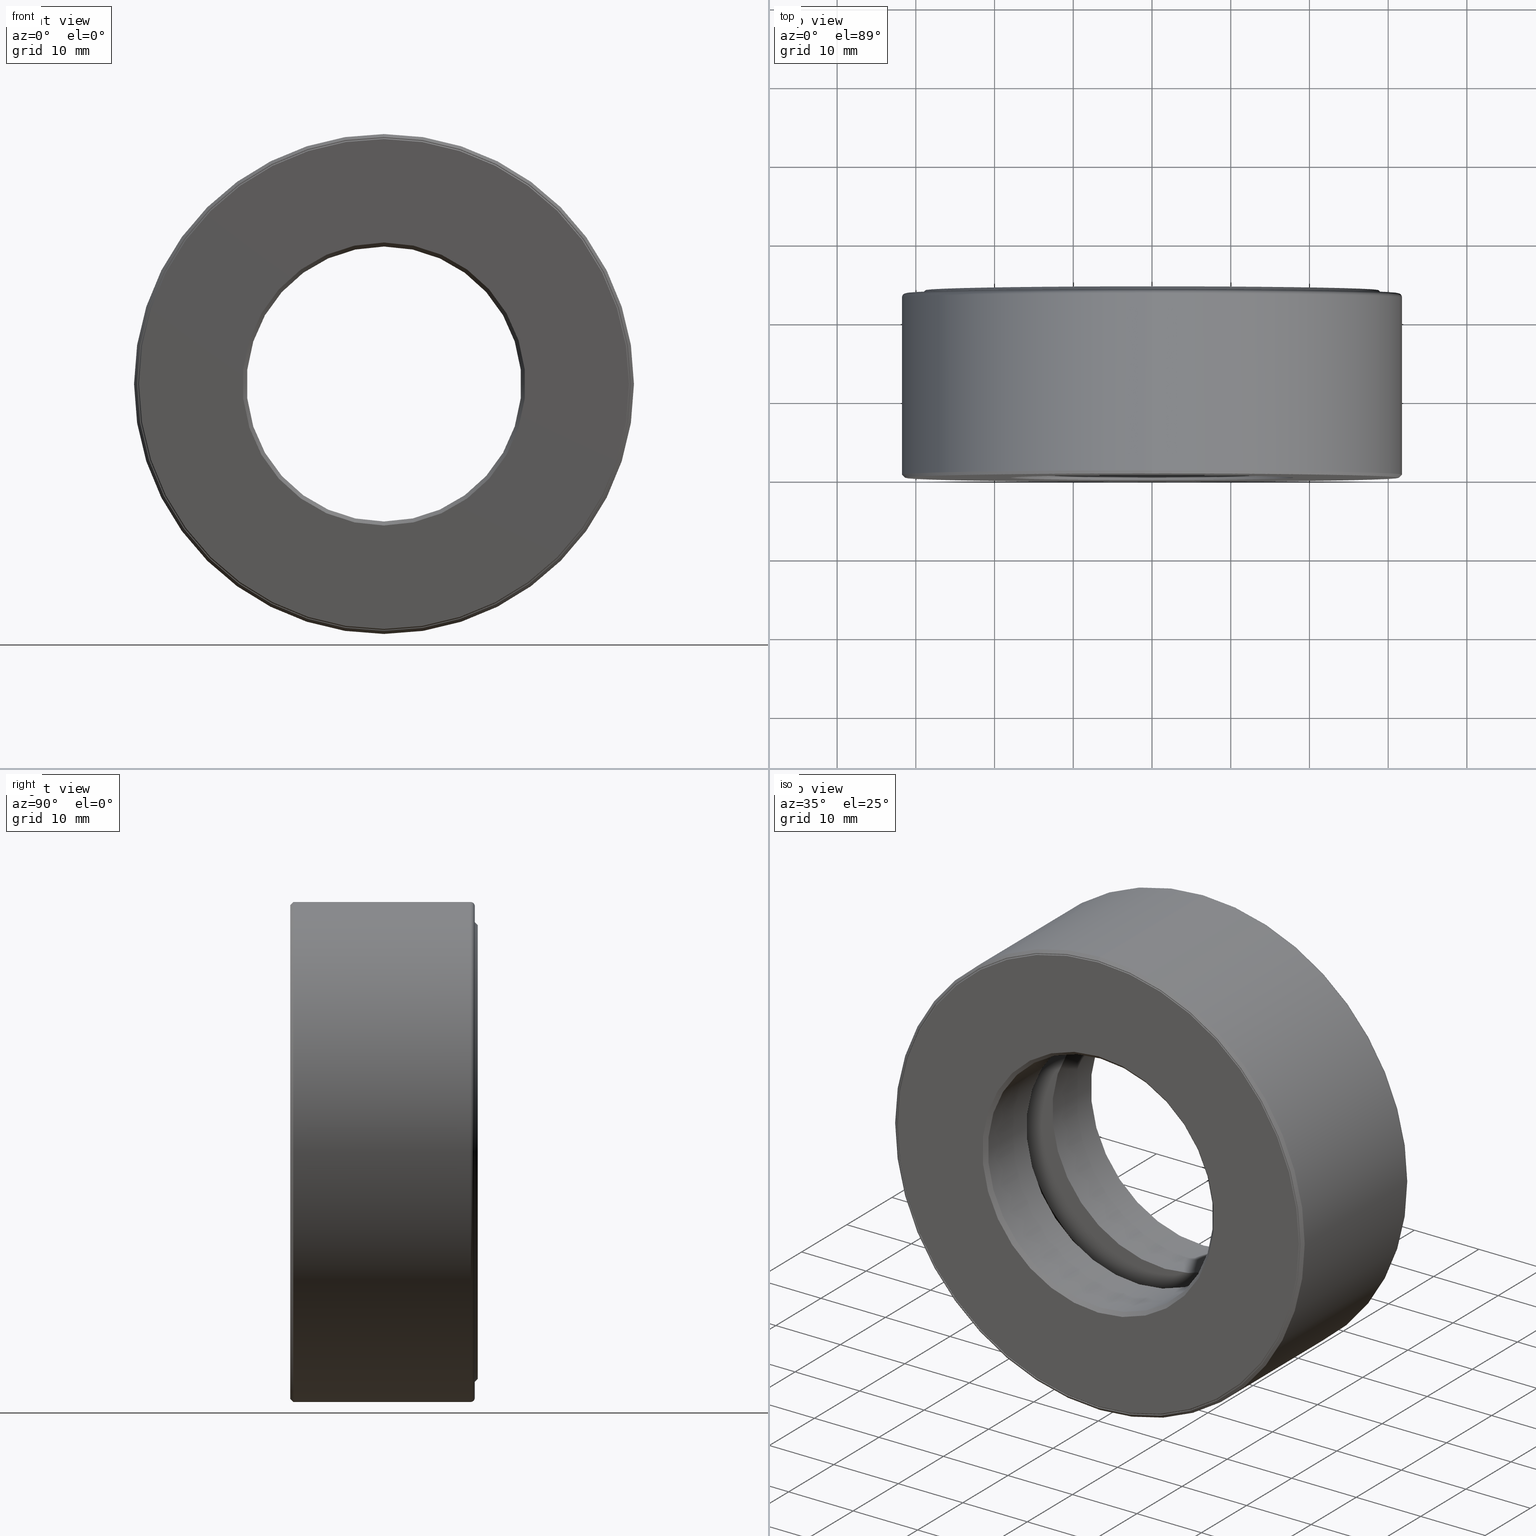
[diagram: canonical four-view strip — front | top / right | iso, engineering-drawing reading convention]
A machine part, canonical four-view strip (front | top / right | iso — engineering-drawing reading convention). The complete STEP part file that produces these views, byte-faithful:
ISO-10303-21;
HEADER;
FILE_DESCRIPTION (( 'STEP AP203' ),
    '1' );
FILE_NAME ('T-100-19A.step',
    '2016-06-29T18:27:23',
    ( '' ),
    ( '' ),
    'SwSTEP 2.0',
    'SolidWorks 2016',
    '' );
FILE_SCHEMA (( 'CONFIG_CONTROL_DESIGN' ));
ENDSEC;

DATA;
#1 = ORIENTED_EDGE ( 'NONE', *, *, #369, .T. ) ;
#2 = DIRECTION ( 'NONE',  ( 0.0000000000000000000, 0.0000000000000000000, 1.000000000000000000 ) ) ;
#3 = CARTESIAN_POINT ( 'NONE',  ( 0.0000000000000000000, 0.9375000000000000000, 0.0000000000000000000 ) ) ;
#4 = DIRECTION ( 'NONE',  ( -0.0000000000000000000, 1.000000000000000000, -0.0000000000000000000 ) ) ;
#5 = VERTEX_POINT ( 'NONE', #175 ) ;
#6 = FACE_OUTER_BOUND ( 'NONE', #220, .T. ) ;
#7 = SPHERICAL_SURFACE ( 'NONE', #243, 0.1874999999999999400 ) ;
#8 = PLANE ( 'NONE',  #431 ) ;
#9 = AXIS2_PLACEMENT_3D ( 'NONE', #467, #472, #430 ) ;
#10 = EDGE_LOOP ( 'NONE', ( #556 ) ) ;
#11 = DIRECTION ( 'NONE',  ( -0.0000000000000000000, 1.000000000000000000, 0.0000000000000000000 ) ) ;
#12 = DIRECTION ( 'NONE',  ( -0.0000000000000000000, 1.000000000000000000, -0.0000000000000000000 ) ) ;
#13 = APPROVAL_DATE_TIME ( #580, #198 ) ;
#14 = CIRCLE ( 'NONE', #468, 0.6875000000000001100 ) ;
#15 = ORIENTED_EDGE ( 'NONE', *, *, #307, .F. ) ;
#16 = ORIENTED_EDGE ( 'NONE', *, *, #245, .T. ) ;
#17 = CARTESIAN_POINT ( 'NONE',  ( -1.033500000000000100, 0.4687499999999998900, 0.0000000000000000000 ) ) ;
#18 = AXIS2_PLACEMENT_3D ( 'NONE', #551, #275, #124 ) ;
#19 = DIRECTION ( 'NONE',  ( 0.0000000000000000000, 0.0000000000000000000, 1.000000000000000000 ) ) ;
#20 = CC_DESIGN_APPROVAL ( #335, ( #64 ) ) ;
#21 = CONICAL_SURFACE ( 'NONE', #366, 0.6875000000000001100, 0.7853981633974380600 ) ;
#22 = CIRCLE ( 'NONE', #460, 1.250000000000000000 ) ;
#23 = EDGE_LOOP ( 'NONE', ( #16 ) ) ;
#24 = CARTESIAN_POINT ( 'NONE',  ( 0.0000000000000000000, 0.01499999999999997700, 1.250000000000000000 ) ) ;
#25 = DIRECTION ( 'NONE',  ( 0.0000000000000000000, -1.000000000000000000, 0.0000000000000000000 ) ) ;
#26 = AXIS2_PLACEMENT_3D ( 'NONE', #239, #520, #293 ) ;
#27 = DIRECTION ( 'NONE',  ( 0.0000000000000000000, -0.0000000000000000000, -1.000000000000000000 ) ) ;
#28 = LOCAL_TIME ( 14, 27, 23.00000000000000000, #510 ) ;
#29 = CIRCLE ( 'NONE', #269, 1.222999999999999900 ) ;
#30 = EDGE_LOOP ( 'NONE', ( #15 ) ) ;
#31 = DIRECTION ( 'NONE',  ( 0.0000000000000000000, 0.0000000000000000000, 1.000000000000000000 ) ) ;
#32 = DIRECTION ( 'NONE',  ( 0.0000000000000000000, -1.000000000000000000, 0.0000000000000000000 ) ) ;
#33 = AXIS2_PLACEMENT_3D ( 'NONE', #167, #272, #590 ) ;
#34 = ADVANCED_FACE ( 'NONE', ( #311, #372 ), #181, .F. ) ;
#35 = AXIS2_PLACEMENT_3D ( 'NONE', #267, #25, #27 ) ;
#36 = CARTESIAN_POINT ( 'NONE',  ( 0.0000000000000000000, 0.5812499999999999300, 0.8835000000000000600 ) ) ;
#37 = FACE_BOUND ( 'NONE', #379, .T. ) ;
#38 = FACE_BOUND ( 'NONE', #533, .T. ) ;
#39 = CARTESIAN_POINT ( 'NONE',  ( 0.0000000000000000000, 0.005000000000000045200, 1.230000000000000000 ) ) ;
#40 = AXIS2_PLACEMENT_3D ( 'NONE', #251, #11, #59 ) ;
#41 =( NAMED_UNIT ( * ) PLANE_ANGLE_UNIT ( ) SI_UNIT ( $, .RADIAN. ) );
#42 = DIRECTION ( 'NONE',  ( 0.0000000000000000000, 0.0000000000000000000, 1.000000000000000000 ) ) ;
#43 = MANIFOLD_SOLID_BREP ( 'BALLS[3]', #258 ) ;
#44 = MANIFOLD_SOLID_BREP ( 'BALLS[1]', #257 ) ;
#45 = DIRECTION ( 'NONE',  ( 0.0000000000000000000, 0.0000000000000000000, 1.000000000000000000 ) ) ;
#46 = VERTEX_POINT ( 'NONE', #405 ) ;
#47 = CIRCLE ( 'NONE', #221, 0.6875000000000001100 ) ;
#48 = EDGE_LOOP ( 'NONE', ( #331 ) ) ;
#49 = AXIS2_PLACEMENT_3D ( 'NONE', #89, #193, #566 ) ;
#50 = DIRECTION ( 'NONE',  ( -0.0000000000000000000, 1.000000000000000000, -0.0000000000000000000 ) ) ;
#51 = LOCAL_TIME ( 14, 27, 23.00000000000000000, #254 ) ;
#52 = DIRECTION ( 'NONE',  ( -0.0000000000000000000, 1.000000000000000000, -0.0000000000000000000 ) ) ;
#53 = FACE_OUTER_BOUND ( 'NONE', #600, .T. ) ;
#54 = ORIENTED_EDGE ( 'NONE', *, *, #160, .T. ) ;
#55 = CARTESIAN_POINT ( 'NONE',  ( 0.0000000000000000000, -5.975917486140577600E-017, 0.0000000000000000000 ) ) ;
#56 = DIRECTION ( 'NONE',  ( 0.0000000000000000000, 0.0000000000000000000, 1.000000000000000000 ) ) ;
#57 = FACE_OUTER_BOUND ( 'NONE', #380, .T. ) ;
#58 = FACE_OUTER_BOUND ( 'NONE', #403, .T. ) ;
#59 = DIRECTION ( 'NONE',  ( 0.0000000000000000000, 0.0000000000000000000, 1.000000000000000000 ) ) ;
#60 = AXIS2_PLACEMENT_3D ( 'NONE', #55, #151, #56 ) ;
#61 = ORIENTED_EDGE ( 'NONE', *, *, #404, .T. ) ;
#62 = CARTESIAN_POINT ( 'NONE',  ( 0.0000000000000000000, 0.0000000000000000000, 0.0000000000000000000 ) ) ;
#63 = DIRECTION ( 'NONE',  ( 1.000000000000000000, 0.0000000000000000000, -1.047444401652939500E-014 ) ) ;
#64 = SECURITY_CLASSIFICATION ( '', '', #129 ) ;
#65 = CARTESIAN_POINT ( 'NONE',  ( 0.0000000000000000000, 0.9024999999999998600, 0.0000000000000000000 ) ) ;
#66 = ORIENTED_EDGE ( 'NONE', *, *, #80, .F. ) ;
#67 = CARTESIAN_POINT ( 'NONE',  ( 0.0000000000000000000, 0.9375000000000000000, 0.0000000000000000000 ) ) ;
#68 = AXIS2_PLACEMENT_3D ( 'NONE', #400, #498, #222 ) ;
#69 = ADVANCED_FACE ( 'NONE', ( #531, #265 ), #390, .F. ) ;
#70 = CARTESIAN_POINT ( 'NONE',  ( 0.0000000000000000000, -5.975917486140577600E-017, 0.0000000000000000000 ) ) ;
#71 = AXIS2_PLACEMENT_3D ( 'NONE', #67, #121, #31 ) ;
#72 = ADVANCED_FACE ( 'NONE', ( #587, #150 ), #190, .F. ) ;
#73 = CARTESIAN_POINT ( 'NONE',  ( 0.0000000000000000000, 0.0000000000000000000, 0.0000000000000000000 ) ) ;
#74 = PERSON_AND_ORGANIZATION ( #457, #156 ) ;
#75 = DIRECTION ( 'NONE',  ( -0.0000000000000000000, 1.000000000000000000, -0.0000000000000000000 ) ) ;
#76 = FACE_OUTER_BOUND ( 'NONE', #448, .T. ) ;
#77 = ORIENTED_EDGE ( 'NONE', *, *, #603, .F. ) ;
#78 = ADVANCED_FACE ( 'NONE', ( #540, #134 ), #422, .T. ) ;
#79 = CARTESIAN_POINT ( 'NONE',  ( 0.0000000000000000000, 0.3562500000000000100, 1.183500000000000000 ) ) ;
#80 = EDGE_CURVE ( 'NONE', #481, #481, #22, .T. ) ;
#81 = DIRECTION ( 'NONE',  ( 0.0000000000000000000, 0.0000000000000000000, 1.000000000000000000 ) ) ;
#82 = APPROVAL_DATE_TIME ( #208, #335 ) ;
#83 = PERSON_AND_ORGANIZATION ( #457, #156 ) ;
#84 = ADVANCED_FACE ( 'NONE', ( #343, #203 ), #165, .F. ) ;
#85 = EDGE_LOOP ( 'NONE', ( #66 ) ) ;
#86 = DIRECTION ( 'NONE',  ( 1.000000000000000000, 0.0000000000000000000, 0.0000000000000000000 ) ) ;
#87 = EDGE_CURVE ( 'NONE', #523, #523, #141, .T. ) ;
#88 = MANIFOLD_SOLID_BREP ( 'BALLS[2]', #189 ) ;
#89 = CARTESIAN_POINT ( 'NONE',  ( 0.0000000000000000000, 0.3562500000000000100, 0.0000000000000000000 ) ) ;
#90 = FACE_OUTER_BOUND ( 'NONE', #423, .T. ) ;
#91 = ORIENTED_EDGE ( 'NONE', *, *, #160, .F. ) ;
#92 = AXIS2_PLACEMENT_3D ( 'NONE', #260, #541, #486 ) ;
#93 = CARTESIAN_POINT ( 'NONE',  ( 0.0000000000000000000, 0.0000000000000000000, 0.0000000000000000000 ) ) ;
#94 = DIRECTION ( 'NONE',  ( 0.0000000000000000000, 0.0000000000000000000, 1.000000000000000000 ) ) ;
#95 = EDGE_CURVE ( 'NONE', #248, #248, #512, .T. ) ;
#96 = CALENDAR_DATE ( 2016, 29, 6 ) ;
#97 = SPHERICAL_SURFACE ( 'NONE', #253, 0.1874999999999999400 ) ;
#98 = ORIENTED_EDGE ( 'NONE', *, *, #113, .T. ) ;
#99 = DIRECTION ( 'NONE',  ( 0.0000000000000000000, 0.0000000000000000000, 1.000000000000000000 ) ) ;
#100 = EDGE_LOOP ( 'NONE', ( #435 ) ) ;
#101 = CARTESIAN_POINT ( 'NONE',  ( 0.0000000000000000000, 0.0000000000000000000, 0.0000000000000000000 ) ) ;
#102 = CC_DESIGN_DATE_AND_TIME_ASSIGNMENT ( #411, #453, ( #64 ) ) ;
#103 = DIRECTION ( 'NONE',  ( -0.0000000000000000000, 1.000000000000000000, -0.0000000000000000000 ) ) ;
#104 = AXIS2_PLACEMENT_3D ( 'NONE', #3, #4, #576 ) ;
#105 = EDGE_LOOP ( 'NONE', ( #136 ) ) ;
#106 = DIRECTION ( 'NONE',  ( 0.0000000000000000000, 0.0000000000000000000, 1.000000000000000000 ) ) ;
#107 = COORDINATED_UNIVERSAL_TIME_OFFSET ( 5, 0, .BEHIND. ) ;
#108 = FACE_OUTER_BOUND ( 'NONE', #30, .T. ) ;
#109 = DIRECTION ( 'NONE',  ( 0.0000000000000000000, 0.0000000000000000000, -1.000000000000000000 ) ) ;
#110 = EDGE_CURVE ( 'NONE', #263, #263, #415, .T. ) ;
#111 = ORIENTED_EDGE ( 'NONE', *, *, #182, .F. ) ;
#112 = CLOSED_SHELL ( 'NONE', ( #397 ) ) ;
#113 = EDGE_CURVE ( 'NONE', #46, #46, #427, .T. ) ;
#114 = ADVANCED_FACE ( 'NONE', ( #76, #384 ), #464, .F. ) ;
#115 = CARTESIAN_POINT ( 'NONE',  ( 0.0000000000000000000, 0.5812499999999999300, 0.0000000000000000000 ) ) ;
#116 = DIRECTION ( 'NONE',  ( 0.0000000000000000000, -0.0000000000000000000, -1.000000000000000000 ) ) ;
#117 = APPROVAL_PERSON_ORGANIZATION ( #83, #294, #135 ) ;
#118 = CIRCLE ( 'NONE', #60, 1.235000000000000100 ) ;
#119 = ORIENTED_EDGE ( 'NONE', *, *, #168, .T. ) ;
#120 = DIRECTION ( 'NONE',  ( 0.0000000000000000000, 0.0000000000000000000, 1.000000000000000000 ) ) ;
#121 = DIRECTION ( 'NONE',  ( -0.0000000000000000000, 1.000000000000000000, 0.0000000000000000000 ) ) ;
#122 = AXIS2_PLACEMENT_3D ( 'NONE', #584, #485, #161 ) ;
#123 = DIRECTION ( 'NONE',  ( -0.0000000000000000000, 1.000000000000000000, -0.0000000000000000000 ) ) ;
#124 = DIRECTION ( 'NONE',  ( 0.0000000000000000000, 0.0000000000000000000, -1.000000000000000000 ) ) ;
#125 = EDGE_LOOP ( 'NONE', ( #513 ) ) ;
#126 = ORIENTED_EDGE ( 'NONE', *, *, #586, .F. ) ;
#127 = EDGE_CURVE ( 'NONE', #552, #552, #29, .T. ) ;
#128 = ADVANCED_FACE ( 'NONE', ( #249, #53 ), #560, .F. ) ;
#129 = SECURITY_CLASSIFICATION_LEVEL ( 'unclassified' ) ;
#130 = APPROVAL_STATUS ( 'not_yet_approved' ) ;
#131 = CARTESIAN_POINT ( 'NONE',  ( 0.0000000000000000000, 0.9024999999999998600, 1.250000000000000000 ) ) ;
#132 = VERTEX_POINT ( 'NONE', #36 ) ;
#133 = CIRCLE ( 'NONE', #33, 1.229999999999999800 ) ;
#134 = FACE_OUTER_BOUND ( 'NONE', #48, .T. ) ;
#135 = APPROVAL_ROLE ( '' ) ;
#136 = ORIENTED_EDGE ( 'NONE', *, *, #347, .F. ) ;
#137 = AXIS2_PLACEMENT_3D ( 'NONE', #445, #223, #550 ) ;
#138 = DIRECTION ( 'NONE',  ( 0.0000000000000000000, 0.0000000000000000000, 1.000000000000000000 ) ) ;
#139 = COORDINATED_UNIVERSAL_TIME_OFFSET ( 5, 0, .BEHIND. ) ;
#140 = DIRECTION ( 'NONE',  ( -0.0000000000000000000, 1.000000000000000000, -0.0000000000000000000 ) ) ;
#141 = CIRCLE ( 'NONE', #174, 1.229999999999999800 ) ;
#142 = EDGE_LOOP ( 'NONE', ( #241 ) ) ;
#143 = ORIENTED_EDGE ( 'NONE', *, *, #307, .T. ) ;
#144 = EDGE_CURVE ( 'NONE', #356, #356, #606, .T. ) ;
#145 = DIRECTION ( 'NONE',  ( 0.0000000000000000000, -1.000000000000000000, 0.0000000000000000000 ) ) ;
#146 = ADVANCED_BREP_SHAPE_REPRESENTATION ( 'T-100-19A', ( #152, #544, #298, #44, #88, #43, #570 ), #285 ) ;
#147 = DIRECTION ( 'NONE',  ( -0.0000000000000000000, 1.000000000000000000, 0.0000000000000000000 ) ) ;
#148 = AXIS2_PLACEMENT_3D ( 'NONE', #186, #50, #45 ) ;
#149 = APPROVAL_PERSON_ORGANIZATION ( #308, #198, #184 ) ;
#150 = FACE_BOUND ( 'NONE', #549, .T. ) ;
#151 = DIRECTION ( 'NONE',  ( -0.0000000000000000000, 1.000000000000000000, -0.0000000000000000000 ) ) ;
#152 = MANIFOLD_SOLID_BREP ( 'Revolve2[1]', #519 ) ;
#153 = DIRECTION ( 'NONE',  ( 0.0000000000000000000, 0.0000000000000000000, 1.000000000000000000 ) ) ;
#154 = DIRECTION ( 'NONE',  ( 0.0000000000000000000, 0.0000000000000000000, 1.000000000000000000 ) ) ;
#155 = AXIS2_PLACEMENT_3D ( 'NONE', #101, #159, #346 ) ;
#156 = ORGANIZATION ( 'UNSPECIFIED', 'UNSPECIFIED', '' ) ;
#157 = CONICAL_SURFACE ( 'NONE', #122, 1.134999999999999800, 0.7853981633974490600 ) ;
#158 = EDGE_LOOP ( 'NONE', ( #119 ) ) ;
#159 = DIRECTION ( 'NONE',  ( -0.0000000000000000000, 1.000000000000000000, -0.0000000000000000000 ) ) ;
#160 = EDGE_CURVE ( 'NONE', #132, #132, #401, .T. ) ;
#161 = DIRECTION ( 'NONE',  ( 0.0000000000000000000, 0.0000000000000000000, -1.000000000000000000 ) ) ;
#162 = VERTEX_POINT ( 'NONE', #375 ) ;
#163 = CARTESIAN_POINT ( 'NONE',  ( 0.0000000000000000000, 0.9224999999999998800, 0.0000000000000000000 ) ) ;
#164 = CC_DESIGN_PERSON_AND_ORGANIZATION_ASSIGNMENT ( #240, #237, ( #274 ) ) ;
#165 = CYLINDRICAL_SURFACE ( 'NONE', #480, 0.6875000000000000000 ) ;
#166 = ORIENTED_EDGE ( 'NONE', *, *, #194, .F. ) ;
#167 = CARTESIAN_POINT ( 'NONE',  ( 0.0000000000000000000, 0.3562499999999999000, 0.0000000000000000000 ) ) ;
#168 = EDGE_CURVE ( 'NONE', #370, #370, #330, .T. ) ;
#169 = DIRECTION ( 'NONE',  ( -0.0000000000000000000, 1.000000000000000000, -0.0000000000000000000 ) ) ;
#170 = ADVANCED_FACE ( 'NONE', ( ), #7, .T. ) ;
#171 = FACE_BOUND ( 'NONE', #358, .T. ) ;
#172 = EDGE_LOOP ( 'NONE', ( #166 ) ) ;
#173 = DIRECTION ( 'NONE',  ( -0.0000000000000000000, 1.000000000000000000, -0.0000000000000000000 ) ) ;
#174 = AXIS2_PLACEMENT_3D ( 'NONE', #470, #419, #334 ) ;
#175 = CARTESIAN_POINT ( 'NONE',  ( 0.0000000000000000000, -5.975917486140577600E-017, 1.235000000000000100 ) ) ;
#176 = PRODUCT_DEFINITION_SHAPE ( 'NONE', 'NONE',  #355 ) ;
#177 = DATE_AND_TIME ( #210, #28 ) ;
#178 = ADVANCED_FACE ( 'NONE', ( #299, #482 ), #8, .F. ) ;
#179 = CARTESIAN_POINT ( 'NONE',  ( 0.0000000000000000000, 0.3562500000000000700, 0.6875000000000001100 ) ) ;
#180 = FACE_OUTER_BOUND ( 'NONE', #158, .T. ) ;
#181 = TOROIDAL_SURFACE ( 'NONE', #278, 1.033500000000000100, 0.1874999999999999700 ) ;
#182 = EDGE_CURVE ( 'NONE', #475, #475, #492, .T. ) ;
#183 = ORIENTED_EDGE ( 'NONE', *, *, #313, .T. ) ;
#184 = APPROVAL_ROLE ( '' ) ;
#185 = DATE_TIME_ROLE ( 'creation_date' ) ;
#186 = CARTESIAN_POINT ( 'NONE',  ( 0.0000000000000000000, 0.0000000000000000000, 0.0000000000000000000 ) ) ;
#187 = FACE_OUTER_BOUND ( 'NONE', #484, .T. ) ;
#188 = FACE_OUTER_BOUND ( 'NONE', #277, .T. ) ;
#189 = CLOSED_SHELL ( 'NONE', ( #271 ) ) ;
#190 = PLANE ( 'NONE',  #26 ) ;
#191 = AXIS2_PLACEMENT_3D ( 'NONE', #70, #394, #437 ) ;
#192 = CARTESIAN_POINT ( 'NONE',  ( 0.0000000000000000000, 0.8495000000000000300, 0.0000000000000000000 ) ) ;
#193 = DIRECTION ( 'NONE',  ( -0.0000000000000000000, 1.000000000000000000, -0.0000000000000000000 ) ) ;
#194 = EDGE_CURVE ( 'NONE', #5, #5, #118, .T. ) ;
#195 = SHAPE_DEFINITION_REPRESENTATION ( #176, #146 ) ;
#196 = EDGE_LOOP ( 'NONE', ( #61 ) ) ;
#197 = DIRECTION ( 'NONE',  ( 0.0000000000000000000, 0.0000000000000000000, 1.000000000000000000 ) ) ;
#198 = APPROVAL ( #130, 'UNSPECIFIED' ) ;
#199 = DIRECTION ( 'NONE',  ( -3.491481338843131800E-015, 0.0000000000000000000, -1.000000000000000000 ) ) ;
#200 = PLANE ( 'NONE',  #40 ) ;
#201 = AXIS2_PLACEMENT_3D ( 'NONE', #524, #572, #252 ) ;
#202 = CIRCLE ( 'NONE', #591, 1.230000000000000000 ) ;
#203 = FACE_OUTER_BOUND ( 'NONE', #345, .T. ) ;
#204 = CARTESIAN_POINT ( 'NONE',  ( 0.0000000000000000000, 0.5812499999999999300, 0.0000000000000000000 ) ) ;
#205 = EDGE_LOOP ( 'NONE', ( #1 ) ) ;
#206 = DIRECTION ( 'NONE',  ( -1.000000000000000000, 0.0000000000000000000, 6.982962677686263600E-015 ) ) ;
#207 = DIRECTION ( 'NONE',  ( 0.0000000000000000000, 0.0000000000000000000, 1.000000000000000000 ) ) ;
#208 = DATE_AND_TIME ( #321, #348 ) ;
#209 = AXIS2_PLACEMENT_3D ( 'NONE', #392, #438, #207 ) ;
#210 = CALENDAR_DATE ( 2016, 29, 6 ) ;
#211 = FACE_BOUND ( 'NONE', #588, .T. ) ;
#212 = ORIENTED_EDGE ( 'NONE', *, *, #194, .T. ) ;
#213 = EDGE_LOOP ( 'NONE', ( #126 ) ) ;
#214 = EDGE_CURVE ( 'NONE', #399, #399, #574, .T. ) ;
#215 = CARTESIAN_POINT ( 'NONE',  ( 0.0000000000000000000, -5.975917486140575200E-017, 0.0000000000000000000 ) ) ;
#216 = CC_DESIGN_APPROVAL ( #294, ( #585 ) ) ;
#217 = PLANE ( 'NONE',  #35 ) ;
#218 = DIRECTION ( 'NONE',  ( 0.0000000000000000000, -1.000000000000000000, 0.0000000000000000000 ) ) ;
#219 = CYLINDRICAL_SURFACE ( 'NONE', #577, 0.6875000000000001100 ) ;
#220 = EDGE_LOOP ( 'NONE', ( #91 ) ) ;
#221 = AXIS2_PLACEMENT_3D ( 'NONE', #578, #256, #536 ) ;
#222 = DIRECTION ( 'NONE',  ( 0.0000000000000000000, 0.0000000000000000000, 1.000000000000000000 ) ) ;
#223 = DIRECTION ( 'NONE',  ( -0.0000000000000000000, 1.000000000000000000, -0.0000000000000000000 ) ) ;
#224 = CALENDAR_DATE ( 2016, 29, 6 ) ;
#225 = VERTEX_POINT ( 'NONE', #555 ) ;
#226 = ORIENTED_EDGE ( 'NONE', *, *, #442, .F. ) ;
#227 = ORIENTED_EDGE ( 'NONE', *, *, #87, .F. ) ;
#228 = ADVANCED_FACE ( 'NONE', ( #38, #477 ), #529, .F. ) ;
#229 = PERSON_AND_ORGANIZATION_ROLE ( 'classification_officer' ) ;
#230 = CC_DESIGN_PERSON_AND_ORGANIZATION_ASSIGNMENT ( #333, #511, ( #355 ) ) ;
#231 = APPROVAL_ROLE ( '' ) ;
#232 = CARTESIAN_POINT ( 'NONE',  ( 0.0000000000000000000, 0.8495000000000000300, 1.222999999999999900 ) ) ;
#233 = DIRECTION ( 'NONE',  ( 0.0000000000000000000, 0.0000000000000000000, 1.000000000000000000 ) ) ;
#234 = FACE_OUTER_BOUND ( 'NONE', #105, .T. ) ;
#235 = AXIS2_PLACEMENT_3D ( 'NONE', #516, #238, #42 ) ;
#236 = EDGE_LOOP ( 'NONE', ( #250 ) ) ;
#237 = PERSON_AND_ORGANIZATION_ROLE ( 'design_owner' ) ;
#238 = DIRECTION ( 'NONE',  ( -0.0000000000000000000, 1.000000000000000000, -0.0000000000000000000 ) ) ;
#239 = CARTESIAN_POINT ( 'NONE',  ( 0.0000000000000000000, 0.9024999999999998600, 0.0000000000000000000 ) ) ;
#240 = PERSON_AND_ORGANIZATION ( #457, #156 ) ;
#241 = ORIENTED_EDGE ( 'NONE', *, *, #87, .T. ) ;
#242 = EDGE_LOOP ( 'NONE', ( #554 ) ) ;
#243 = AXIS2_PLACEMENT_3D ( 'NONE', #337, #344, #199 ) ;
#244 = CARTESIAN_POINT ( 'NONE',  ( 0.0000000000000000000, 0.0000000000000000000, 0.0000000000000000000 ) ) ;
#245 = EDGE_CURVE ( 'NONE', #362, #362, #525, .T. ) ;
#246 = PRODUCT_RELATED_PRODUCT_CATEGORY ( 'detail', '', ( #274 ) ) ;
#247 = VERTEX_POINT ( 'NONE', #410 ) ;
#248 = VERTEX_POINT ( 'NONE', #79 ) ;
#249 = FACE_BOUND ( 'NONE', #213, .T. ) ;
#250 = ORIENTED_EDGE ( 'NONE', *, *, #110, .F. ) ;
#251 = CARTESIAN_POINT ( 'NONE',  ( -1.276717133350769500E-032, -5.995992497639026200E-017, 0.0000000000000000000 ) ) ;
#252 = DIRECTION ( 'NONE',  ( 0.0000000000000000000, 0.0000000000000000000, 1.000000000000000000 ) ) ;
#253 = AXIS2_PLACEMENT_3D ( 'NONE', #393, #63, #354 ) ;
#254 = COORDINATED_UNIVERSAL_TIME_OFFSET ( 5, 0, .BEHIND. ) ;
#255 = FACE_BOUND ( 'NONE', #142, .T. ) ;
#256 = DIRECTION ( 'NONE',  ( -0.0000000000000000000, 1.000000000000000000, -0.0000000000000000000 ) ) ;
#257 = CLOSED_SHELL ( 'NONE', ( #170 ) ) ;
#258 = CLOSED_SHELL ( 'NONE', ( #360 ) ) ;
#259 = AXIS2_PLACEMENT_3D ( 'NONE', #547, #32, #116 ) ;
#260 = CARTESIAN_POINT ( 'NONE',  ( 0.0000000000000000000, -5.975917486140575200E-017, 0.0000000000000000000 ) ) ;
#261 = ADVANCED_FACE ( 'NONE', ( #357, #234 ), #219, .F. ) ;
#262 = CC_DESIGN_PERSON_AND_ORGANIZATION_ASSIGNMENT ( #389, #280, ( #585 ) ) ;
#263 = VERTEX_POINT ( 'NONE', #319 ) ;
#264 = TOROIDAL_SURFACE ( 'NONE', #462, 1.230000000000000000, 0.02000000000000005900 ) ;
#265 = FACE_OUTER_BOUND ( 'NONE', #396, .T. ) ;
#266 = ORIENTED_EDGE ( 'NONE', *, *, #95, .T. ) ;
#267 = CARTESIAN_POINT ( 'NONE',  ( -2.025365620302748100E-016, 0.5812499999999999300, 0.0000000000000000000 ) ) ;
#268 = ADVANCED_FACE ( 'NONE', ( #283, #255 ), #200, .F. ) ;
#269 = AXIS2_PLACEMENT_3D ( 'NONE', #192, #296, #433 ) ;
#270 = DIRECTION ( 'NONE',  ( 0.0000000000000000000, 0.0000000000000000000, 1.000000000000000000 ) ) ;
#271 = ADVANCED_FACE ( 'NONE', ( ), #518, .T. ) ;
#272 = DIRECTION ( 'NONE',  ( -0.0000000000000000000, 1.000000000000000000, -0.0000000000000000000 ) ) ;
#273 = PERSON_AND_ORGANIZATION ( #457, #156 ) ;
#274 = PRODUCT ( 'T-100-19A', 'T-100-19A', '', ( #601 ) ) ;
#275 = DIRECTION ( 'NONE',  ( 0.0000000000000000000, -1.000000000000000000, 0.0000000000000000000 ) ) ;
#276 = FACE_OUTER_BOUND ( 'NONE', #85, .T. ) ;
#277 = EDGE_LOOP ( 'NONE', ( #575 ) ) ;
#278 = AXIS2_PLACEMENT_3D ( 'NONE', #332, #605, #233 ) ;
#279 = DIMENSIONAL_EXPONENTS ( 1.000000000000000000, 0.0000000000000000000, 0.0000000000000000000, 0.0000000000000000000, 0.0000000000000000000, 0.0000000000000000000, 0.0000000000000000000 ) ;
#280 = PERSON_AND_ORGANIZATION_ROLE ( 'design_supplier' ) ;
#281 = AXIS2_PLACEMENT_3D ( 'NONE', #424, #289, #99 ) ;
#282 = FACE_OUTER_BOUND ( 'NONE', #312, .T. ) ;
#283 = FACE_OUTER_BOUND ( 'NONE', #172, .T. ) ;
#284 = CARTESIAN_POINT ( 'NONE',  ( 0.0000000000000000000, 0.9024999999999998600, 1.170000000000000200 ) ) ;
#285 =( GEOMETRIC_REPRESENTATION_CONTEXT ( 3 ) GLOBAL_UNCERTAINTY_ASSIGNED_CONTEXT ( ( #434 ) ) GLOBAL_UNIT_ASSIGNED_CONTEXT ( ( #459, #41, #515 ) ) REPRESENTATION_CONTEXT ( 'NONE', 'WORKASPACE' ) );
#286 = EDGE_LOOP ( 'NONE', ( #479 ) ) ;
#287 = CARTESIAN_POINT ( 'NONE',  ( 0.0000000000000000000, 0.5812499999999999300, 1.223000000000000100 ) ) ;
#288 = DIRECTION ( 'NONE',  ( -0.0000000000000000000, 1.000000000000000000, -0.0000000000000000000 ) ) ;
#289 = DIRECTION ( 'NONE',  ( -0.0000000000000000000, 1.000000000000000000, -0.0000000000000000000 ) ) ;
#290 = FACE_BOUND ( 'NONE', #391, .T. ) ;
#291 = AXIS2_PLACEMENT_3D ( 'NONE', #215, #306, #532 ) ;
#292 = ORIENTED_EDGE ( 'NONE', *, *, #144, .F. ) ;
#293 = DIRECTION ( 'NONE',  ( 0.0000000000000000000, 0.0000000000000000000, 1.000000000000000000 ) ) ;
#294 = APPROVAL ( #507, 'UNSPECIFIED' ) ;
#295 = LOCAL_TIME ( 14, 27, 23.00000000000000000, #139 ) ;
#296 = DIRECTION ( 'NONE',  ( -0.0000000000000000000, 1.000000000000000000, -0.0000000000000000000 ) ) ;
#297 = CONICAL_SURFACE ( 'NONE', #18, 0.6875000000000000000, 0.7853981633974380600 ) ;
#298 = MANIFOLD_SOLID_BREP ( 'Revolve3', #112 ) ;
#299 = FACE_OUTER_BOUND ( 'NONE', #317, .T. ) ;
#300 = DIRECTION ( 'NONE',  ( 0.0000000000000000000, 0.0000000000000000000, 1.000000000000000000 ) ) ;
#301 = ORIENTED_EDGE ( 'NONE', *, *, #586, .T. ) ;
#302 = CC_DESIGN_SECURITY_CLASSIFICATION ( #64, ( #585 ) ) ;
#303 = VERTEX_POINT ( 'NONE', #284 ) ;
#304 = FACE_OUTER_BOUND ( 'NONE', #125, .T. ) ;
#305 = ORIENTED_EDGE ( 'NONE', *, *, #214, .F. ) ;
#306 = DIRECTION ( 'NONE',  ( -0.0000000000000000000, 1.000000000000000000, -0.0000000000000000000 ) ) ;
#307 = EDGE_CURVE ( 'NONE', #488, #488, #561, .T. ) ;
#308 = PERSON_AND_ORGANIZATION ( #457, #156 ) ;
#309 = FACE_OUTER_BOUND ( 'NONE', #466, .T. ) ;
#310 = PLANE ( 'NONE',  #71 ) ;
#311 = FACE_OUTER_BOUND ( 'NONE', #429, .T. ) ;
#312 = EDGE_LOOP ( 'NONE', ( #143 ) ) ;
#313 = EDGE_CURVE ( 'NONE', #469, #469, #446, .T. ) ;
#314 = ADVANCED_FACE ( 'NONE', ( #90, #188 ), #548, .F. ) ;
#315 = DIRECTION ( 'NONE',  ( -0.0000000000000000000, 1.000000000000000000, -0.0000000000000000000 ) ) ;
#316 = FACE_BOUND ( 'NONE', #596, .T. ) ;
#317 = EDGE_LOOP ( 'NONE', ( #595 ) ) ;
#318 = ADVANCED_FACE ( 'NONE', ( #304, #171 ), #157, .T. ) ;
#319 = CARTESIAN_POINT ( 'NONE',  ( 0.0000000000000000000, 0.9024999999999998600, 1.230000000000000000 ) ) ;
#320 = ADVANCED_FACE ( 'NONE', ( #276, #316 ), #539, .T. ) ;
#321 = CALENDAR_DATE ( 2016, 29, 6 ) ;
#322 = APPLICATION_CONTEXT ( 'configuration controlled 3d designs of mechanical parts and assemblies' ) ;
#323 = CC_DESIGN_DATE_AND_TIME_ASSIGNMENT ( #177, #185, ( #355 ) ) ;
#324 = EDGE_LOOP ( 'NONE', ( #98 ) ) ;
#325 =( LENGTH_UNIT ( ) NAMED_UNIT ( * ) SI_UNIT ( $, .METRE. ) );
#326 = APPLICATION_PROTOCOL_DEFINITION ( 'international standard', 'config_control_design', 1994, #322 ) ;
#327 = CARTESIAN_POINT ( 'NONE',  ( 0.0000000000000000000, 0.01499999999999997700, 0.0000000000000000000 ) ) ;
#328 = AXIS2_PLACEMENT_3D ( 'NONE', #569, #145, #571 ) ;
#329 = CYLINDRICAL_SURFACE ( 'NONE', #502, 1.170000000000000200 ) ;
#330 = CIRCLE ( 'NONE', #104, 0.7075000000000003500 ) ;
#331 = ORIENTED_EDGE ( 'NONE', *, *, #127, .F. ) ;
#332 = CARTESIAN_POINT ( 'NONE',  ( 0.0000000000000000000, 0.4687499999999999400, 0.0000000000000000000 ) ) ;
#333 = PERSON_AND_ORGANIZATION ( #457, #156 ) ;
#334 = DIRECTION ( 'NONE',  ( 0.0000000000000000000, 0.0000000000000000000, 1.000000000000000000 ) ) ;
#335 = APPROVAL ( #557, 'UNSPECIFIED' ) ;
#336 = ORIENTED_EDGE ( 'NONE', *, *, #442, .T. ) ;
#337 = CARTESIAN_POINT ( 'NONE',  ( 3.608445963694378000E-015, 0.4687499999999998900, 1.033500000000000100 ) ) ;
#338 = AXIS2_PLACEMENT_3D ( 'NONE', #340, #12, #153 ) ;
#339 = CC_DESIGN_PERSON_AND_ORGANIZATION_ASSIGNMENT ( #273, #229, ( #64 ) ) ;
#340 = CARTESIAN_POINT ( 'NONE',  ( 0.0000000000000000000, 0.0000000000000000000, 0.0000000000000000000 ) ) ;
#341 = APPROVAL_PERSON_ORGANIZATION ( #74, #335, #231 ) ;
#342 = FACE_OUTER_BOUND ( 'NONE', #443, .T. ) ;
#343 = FACE_OUTER_BOUND ( 'NONE', #352, .T. ) ;
#344 = DIRECTION ( 'NONE',  ( -1.000000000000000000, 0.0000000000000000000, 3.491481338843131800E-015 ) ) ;
#345 = EDGE_LOOP ( 'NONE', ( #301 ) ) ;
#346 = DIRECTION ( 'NONE',  ( 0.0000000000000000000, 0.0000000000000000000, 1.000000000000000000 ) ) ;
#347 = EDGE_CURVE ( 'NONE', #599, #599, #14, .T. ) ;
#348 = LOCAL_TIME ( 14, 27, 23.00000000000000000, #425 ) ;
#349 = DIRECTION ( 'NONE',  ( -0.0000000000000000000, 1.000000000000000000, -0.0000000000000000000 ) ) ;
#350 = VERTEX_POINT ( 'NONE', #371 ) ;
#351 = EDGE_LOOP ( 'NONE', ( #364 ) ) ;
#352 = EDGE_LOOP ( 'NONE', ( #563 ) ) ;
#353 = DIRECTION ( 'NONE',  ( -0.0000000000000000000, 1.000000000000000000, -0.0000000000000000000 ) ) ;
#354 = DIRECTION ( 'NONE',  ( 1.047444401652939500E-014, 0.0000000000000000000, 1.000000000000000000 ) ) ;
#355 = PRODUCT_DEFINITION ( 'UNKNOWN', '', #585, #441 ) ;
#356 = VERTEX_POINT ( 'NONE', #39 ) ;
#357 = FACE_OUTER_BOUND ( 'NONE', #602, .T. ) ;
#358 = EDGE_LOOP ( 'NONE', ( #385 ) ) ;
#359 = EDGE_CURVE ( 'NONE', #592, #592, #47, .T. ) ;
#360 = ADVANCED_FACE ( 'NONE', ( ), #97, .T. ) ;
#361 = CARTESIAN_POINT ( 'NONE',  ( 0.0000000000000000000, 0.9024999999999998600, 0.0000000000000000000 ) ) ;
#362 = VERTEX_POINT ( 'NONE', #508 ) ;
#363 = FACE_OUTER_BOUND ( 'NONE', #286, .T. ) ;
#364 = ORIENTED_EDGE ( 'NONE', *, *, #347, .T. ) ;
#365 = ADVANCED_FACE ( 'NONE', ( #58, #290 ), #581, .T. ) ;
#366 = AXIS2_PLACEMENT_3D ( 'NONE', #504, #315, #542 ) ;
#367 = ADVANCED_FACE ( 'NONE', ( #501, #309 ), #329, .F. ) ;
#368 = DIRECTION ( 'NONE',  ( 0.0000000000000000000, 0.0000000000000000000, 1.000000000000000000 ) ) ;
#369 = EDGE_CURVE ( 'NONE', #247, #247, #463, .T. ) ;
#370 = VERTEX_POINT ( 'NONE', #465 ) ;
#371 = CARTESIAN_POINT ( 'NONE',  ( 0.0000000000000000000, 0.9224999999999998800, 1.230000000000000000 ) ) ;
#372 = FACE_OUTER_BOUND ( 'NONE', #10, .T. ) ;
#373 = ORIENTED_EDGE ( 'NONE', *, *, #95, .F. ) ;
#374 = CARTESIAN_POINT ( 'NONE',  ( 0.0000000000000000000, 0.0000000000000000000, 0.0000000000000000000 ) ) ;
#375 = CARTESIAN_POINT ( 'NONE',  ( 0.0000000000000000000, 0.3562499999999999000, 1.229999999999999800 ) ) ;
#376 = DIRECTION ( 'NONE',  ( -0.0000000000000000000, 1.000000000000000000, -0.0000000000000000000 ) ) ;
#377 = CARTESIAN_POINT ( 'NONE',  ( 0.0000000000000000000, 0.5812499999999999300, 0.0000000000000000000 ) ) ;
#378 = AXIS2_PLACEMENT_3D ( 'NONE', #374, #288, #564 ) ;
#379 = EDGE_LOOP ( 'NONE', ( #562 ) ) ;
#380 = EDGE_LOOP ( 'NONE', ( #568 ) ) ;
#381 = ORIENTED_EDGE ( 'NONE', *, *, #439, .F. ) ;
#382 = PERSON_AND_ORGANIZATION ( #457, #156 ) ;
#383 = CYLINDRICAL_SURFACE ( 'NONE', #412, 1.250000000000000000 ) ;
#384 = FACE_OUTER_BOUND ( 'NONE', #402, .T. ) ;
#385 = ORIENTED_EDGE ( 'NONE', *, *, #245, .F. ) ;
#386 = CARTESIAN_POINT ( 'NONE',  ( 0.0000000000000000000, 0.9375000000000000000, 0.0000000000000000000 ) ) ;
#387 = AXIS2_PLACEMENT_3D ( 'NONE', #377, #140, #138 ) ;
#388 = DIRECTION ( 'NONE',  ( -0.0000000000000000000, 1.000000000000000000, -0.0000000000000000000 ) ) ;
#389 = PERSON_AND_ORGANIZATION ( #457, #156 ) ;
#390 = CYLINDRICAL_SURFACE ( 'NONE', #378, 1.230000000000000000 ) ;
#391 = EDGE_LOOP ( 'NONE', ( #183 ) ) ;
#392 = CARTESIAN_POINT ( 'NONE',  ( 0.0000000000000000000, 0.02000000000000060800, 0.0000000000000000000 ) ) ;
#393 = CARTESIAN_POINT ( 'NONE',  ( -1.082533789108313600E-014, 0.4687499999999998900, -1.033500000000000100 ) ) ;
#394 = DIRECTION ( 'NONE',  ( -0.0000000000000000000, 1.000000000000000000, -0.0000000000000000000 ) ) ;
#395 = CIRCLE ( 'NONE', #509, 1.170000000000000200 ) ;
#396 = EDGE_LOOP ( 'NONE', ( #455 ) ) ;
#397 = ADVANCED_FACE ( 'NONE', ( ), #573, .T. ) ;
#398 = CARTESIAN_POINT ( 'NONE',  ( 0.0000000000000000000, -6.016067509137474700E-017, 1.229999999999999800 ) ) ;
#399 = VERTEX_POINT ( 'NONE', #287 ) ;
#400 = CARTESIAN_POINT ( 'NONE',  ( 0.0000000000000000000, 0.3562500000000000700, 0.0000000000000000000 ) ) ;
#401 = CIRCLE ( 'NONE', #420, 0.8835000000000000600 ) ;
#402 = EDGE_LOOP ( 'NONE', ( #266 ) ) ;
#403 = EDGE_LOOP ( 'NONE', ( #292 ) ) ;
#404 = EDGE_CURVE ( 'NONE', #350, #350, #202, .T. ) ;
#405 = CARTESIAN_POINT ( 'NONE',  ( 0.0000000000000000000, 0.5812499999999999300, 1.183500000000000000 ) ) ;
#406 = ADVANCED_FACE ( 'NONE', ( #414, #211 ), #310, .T. ) ;
#407 = CARTESIAN_POINT ( 'NONE',  ( 0.0000000000000000000, 0.9224999999999998800, 1.170000000000000200 ) ) ;
#408 = EDGE_CURVE ( 'NONE', #303, #303, #559, .T. ) ;
#409 = ADVANCED_FACE ( 'NONE', ( #187, #421 ), #297, .F. ) ;
#410 = CARTESIAN_POINT ( 'NONE',  ( 0.0000000000000000000, 0.02000000000000060800, 0.6875000000000000000 ) ) ;
#411 = DATE_AND_TIME ( #224, #295 ) ;
#412 = AXIS2_PLACEMENT_3D ( 'NONE', #593, #173, #270 ) ;
#413 = DATE_AND_TIME ( #538, #51 ) ;
#414 = FACE_OUTER_BOUND ( 'NONE', #23, .T. ) ;
#415 = CIRCLE ( 'NONE', #281, 1.230000000000000000 ) ;
#416 = CARTESIAN_POINT ( 'NONE',  ( 0.0000000000000000000, -5.975917486140575200E-017, 1.225000000000000100 ) ) ;
#417 = ORIENTED_EDGE ( 'NONE', *, *, #359, .T. ) ;
#418 = CARTESIAN_POINT ( 'NONE',  ( 0.0000000000000000000, 0.0000000000000000000, 0.7075000000000001300 ) ) ;
#419 = DIRECTION ( 'NONE',  ( -0.0000000000000000000, 1.000000000000000000, -0.0000000000000000000 ) ) ;
#420 = AXIS2_PLACEMENT_3D ( 'NONE', #474, #388, #300 ) ;
#421 = FACE_BOUND ( 'NONE', #205, .T. ) ;
#422 = CYLINDRICAL_SURFACE ( 'NONE', #148, 1.223000000000000100 ) ;
#423 = EDGE_LOOP ( 'NONE', ( #381 ) ) ;
#424 = CARTESIAN_POINT ( 'NONE',  ( 0.0000000000000000000, 0.9024999999999998600, 0.0000000000000000000 ) ) ;
#425 = COORDINATED_UNIVERSAL_TIME_OFFSET ( 5, 0, .BEHIND. ) ;
#426 = FACE_BOUND ( 'NONE', #324, .T. ) ;
#427 = CIRCLE ( 'NONE', #387, 1.183500000000000000 ) ;
#428 = DIRECTION ( 'NONE',  ( 0.0000000000000000000, 0.0000000000000000000, 1.000000000000000000 ) ) ;
#429 = EDGE_LOOP ( 'NONE', ( #54 ) ) ;
#430 = DIRECTION ( 'NONE',  ( 0.0000000000000000000, -0.0000000000000000000, -1.000000000000000000 ) ) ;
#431 = AXIS2_PLACEMENT_3D ( 'NONE', #527, #147, #197 ) ;
#432 = CC_DESIGN_PERSON_AND_ORGANIZATION_ASSIGNMENT ( #382, #514, ( #585 ) ) ;
#433 = DIRECTION ( 'NONE',  ( 0.0000000000000000000, 0.0000000000000000000, 1.000000000000000000 ) ) ;
#434 = UNCERTAINTY_MEASURE_WITH_UNIT (LENGTH_MEASURE( 1.000000000000000100E-005 ), #459, 'distance_accuracy_value', 'NONE');
#435 = ORIENTED_EDGE ( 'NONE', *, *, #214, .T. ) ;
#436 = EDGE_LOOP ( 'NONE', ( #583 ) ) ;
#437 = DIRECTION ( 'NONE',  ( 0.0000000000000000000, 0.0000000000000000000, 1.000000000000000000 ) ) ;
#438 = DIRECTION ( 'NONE',  ( -0.0000000000000000000, 1.000000000000000000, -0.0000000000000000000 ) ) ;
#439 = EDGE_CURVE ( 'NONE', #162, #162, #133, .T. ) ;
#440 = DIRECTION ( 'NONE',  ( 6.982962677686263600E-015, -0.0000000000000000000, 1.000000000000000000 ) ) ;
#441 = DESIGN_CONTEXT ( 'detailed design', #458, 'design' ) ;
#442 = EDGE_CURVE ( 'NONE', #567, #567, #395, .T. ) ;
#443 = EDGE_LOOP ( 'NONE', ( #503 ) ) ;
#444 = PLANE ( 'NONE',  #259 ) ;
#445 = CARTESIAN_POINT ( 'NONE',  ( 0.0000000000000000000, 0.9024999999999998600, 0.0000000000000000000 ) ) ;
#446 = CIRCLE ( 'NONE', #92, 1.225000000000000100 ) ;
#447 = AXIS2_PLACEMENT_3D ( 'NONE', #386, #103, #428 ) ;
#448 = EDGE_LOOP ( 'NONE', ( #77 ) ) ;
#449 = DIRECTION ( 'NONE',  ( 0.0000000000000000000, -0.0000000000000000000, -1.000000000000000000 ) ) ;
#450 = ADVANCED_FACE ( 'NONE', ( #546, #342 ), #495, .F. ) ;
#451 = CARTESIAN_POINT ( 'NONE',  ( -5.232370149155378900E-016, 0.3562499999999999000, 0.0000000000000000000 ) ) ;
#452 = LOCAL_TIME ( 14, 27, 23.00000000000000000, #107 ) ;
#453 = DATE_TIME_ROLE ( 'classification_date' ) ;
#454 = EDGE_LOOP ( 'NONE', ( #227 ) ) ;
#455 = ORIENTED_EDGE ( 'NONE', *, *, #144, .T. ) ;
#456 = AXIS2_PLACEMENT_3D ( 'NONE', #451, #218, #449 ) ;
#457 = PERSON ( 'UNSPECIFIED', 'UNSPECIFIED', 'UNSPECIFIED', ('UNSPECIFIED'), ('UNSPECIFIED'), ('UNSPECIFIED') ) ;
#458 = APPLICATION_CONTEXT ( 'configuration controlled 3d designs of mechanical parts and assemblies' ) ;
#459 =( CONVERSION_BASED_UNIT ( 'INCH', #530 ) LENGTH_UNIT ( ) NAMED_UNIT ( #279 ) );
#460 = AXIS2_PLACEMENT_3D ( 'NONE', #327, #521, #2 ) ;
#461 = CARTESIAN_POINT ( 'NONE',  ( 0.0000000000000000000, 0.9174999999999994300, 0.6875000000000001100 ) ) ;
#462 = AXIS2_PLACEMENT_3D ( 'NONE', #361, #169, #81 ) ;
#463 = CIRCLE ( 'NONE', #209, 0.6875000000000000000 ) ;
#464 = TOROIDAL_SURFACE ( 'NONE', #235, 1.033500000000000100, 0.1874999999999999700 ) ;
#465 = CARTESIAN_POINT ( 'NONE',  ( 0.0000000000000000000, 0.9375000000000000000, 0.7075000000000003500 ) ) ;
#466 = EDGE_LOOP ( 'NONE', ( #336 ) ) ;
#467 = CARTESIAN_POINT ( 'NONE',  ( 0.0000000000000000000, 0.3562500000000000700, 0.0000000000000000000 ) ) ;
#468 = AXIS2_PLACEMENT_3D ( 'NONE', #115, #535, #154 ) ;
#469 = VERTEX_POINT ( 'NONE', #416 ) ;
#470 = CARTESIAN_POINT ( 'NONE',  ( 0.0000000000000000000, -6.016067509137474700E-017, 0.0000000000000000000 ) ) ;
#471 = ORIENTED_EDGE ( 'NONE', *, *, #168, .F. ) ;
#472 = DIRECTION ( 'NONE',  ( 0.0000000000000000000, -1.000000000000000000, 0.0000000000000000000 ) ) ;
#473 = DIRECTION ( 'NONE',  ( -0.0000000000000000000, 1.000000000000000000, -0.0000000000000000000 ) ) ;
#474 = CARTESIAN_POINT ( 'NONE',  ( 0.0000000000000000000, 0.5812499999999999300, 0.0000000000000000000 ) ) ;
#475 = VERTEX_POINT ( 'NONE', #418 ) ;
#476 = FACE_BOUND ( 'NONE', #351, .T. ) ;
#477 = FACE_OUTER_BOUND ( 'NONE', #196, .T. ) ;
#478 = CARTESIAN_POINT ( 'NONE',  ( 1.033500000000000100, 0.4687499999999998900, -7.216891927388756100E-015 ) ) ;
#479 = ORIENTED_EDGE ( 'NONE', *, *, #80, .T. ) ;
#480 = AXIS2_PLACEMENT_3D ( 'NONE', #93, #376, #94 ) ;
#481 = VERTEX_POINT ( 'NONE', #24 ) ;
#482 = FACE_BOUND ( 'NONE', #242, .T. ) ;
#483 = EDGE_LOOP ( 'NONE', ( #305 ) ) ;
#484 = EDGE_LOOP ( 'NONE', ( #111 ) ) ;
#485 = DIRECTION ( 'NONE',  ( 0.0000000000000000000, -1.000000000000000000, 0.0000000000000000000 ) ) ;
#486 = DIRECTION ( 'NONE',  ( 0.0000000000000000000, 0.0000000000000000000, 1.000000000000000000 ) ) ;
#487 = DIRECTION ( 'NONE',  ( 0.0000000000000000000, 0.0000000000000000000, 1.000000000000000000 ) ) ;
#488 = VERTEX_POINT ( 'NONE', #131 ) ;
#489 = AXIS2_PLACEMENT_3D ( 'NONE', #204, #473, #106 ) ;
#490 = CIRCLE ( 'NONE', #553, 0.6875000000000001100 ) ;
#491 = DIRECTION ( 'NONE',  ( 0.0000000000000000000, 0.0000000000000000000, 1.000000000000000000 ) ) ;
#492 = CIRCLE ( 'NONE', #338, 0.7075000000000001300 ) ;
#493 = CC_DESIGN_APPROVAL ( #198, ( #355 ) ) ;
#494 = CLOSED_SHELL ( 'NONE', ( #543, #34, #598, #261, #500, #406, #318, #78 ) ) ;
#495 = PLANE ( 'NONE',  #456 ) ;
#496 = ADVANCED_FACE ( 'NONE', ( #108, #363 ), #383, .T. ) ;
#497 = CARTESIAN_POINT ( 'NONE',  ( 0.0000000000000000000, 0.3562500000000000700, 0.0000000000000000000 ) ) ;
#498 = DIRECTION ( 'NONE',  ( -0.0000000000000000000, 1.000000000000000000, -0.0000000000000000000 ) ) ;
#499 = CIRCLE ( 'NONE', #68, 0.8835000000000000600 ) ;
#500 = ADVANCED_FACE ( 'NONE', ( #180, #37 ), #21, .F. ) ;
#501 = FACE_OUTER_BOUND ( 'NONE', #436, .T. ) ;
#502 = AXIS2_PLACEMENT_3D ( 'NONE', #62, #579, #537 ) ;
#503 = ORIENTED_EDGE ( 'NONE', *, *, #439, .T. ) ;
#504 = CARTESIAN_POINT ( 'NONE',  ( 0.0000000000000000000, 0.9174999999999994300, 0.0000000000000000000 ) ) ;
#505 = EDGE_LOOP ( 'NONE', ( #373 ) ) ;
#506 = ADVANCED_FACE ( 'NONE', ( #57, #282 ), #264, .T. ) ;
#507 = APPROVAL_STATUS ( 'not_yet_approved' ) ;
#508 = CARTESIAN_POINT ( 'NONE',  ( 0.0000000000000000000, 0.9375000000000000000, 1.134999999999999800 ) ) ;
#509 = AXIS2_PLACEMENT_3D ( 'NONE', #589, #75, #120 ) ;
#510 = COORDINATED_UNIVERSAL_TIME_OFFSET ( 5, 0, .BEHIND. ) ;
#511 = PERSON_AND_ORGANIZATION_ROLE ( 'creator' ) ;
#512 = CIRCLE ( 'NONE', #49, 1.183500000000000000 ) ;
#513 = ORIENTED_EDGE ( 'NONE', *, *, #127, .T. ) ;
#514 = PERSON_AND_ORGANIZATION_ROLE ( 'creator' ) ;
#515 =( NAMED_UNIT ( * ) SI_UNIT ( $, .STERADIAN. ) SOLID_ANGLE_UNIT ( ) );
#516 = CARTESIAN_POINT ( 'NONE',  ( 0.0000000000000000000, 0.4687499999999999400, 0.0000000000000000000 ) ) ;
#517 = APPROVAL_DATE_TIME ( #413, #294 ) ;
#518 = SPHERICAL_SURFACE ( 'NONE', #565, 0.1874999999999999400 ) ;
#519 = CLOSED_SHELL ( 'NONE', ( #114, #450, #314, #72, #367, #228, #506, #496, #320, #268, #69, #365, #178, #409, #84, #128 ) ) ;
#520 = DIRECTION ( 'NONE',  ( -0.0000000000000000000, 1.000000000000000000, 0.0000000000000000000 ) ) ;
#521 = DIRECTION ( 'NONE',  ( -0.0000000000000000000, 1.000000000000000000, -0.0000000000000000000 ) ) ;
#522 = DIRECTION ( 'NONE',  ( 0.0000000000000000000, 0.0000000000000000000, 1.000000000000000000 ) ) ;
#523 = VERTEX_POINT ( 'NONE', #398 ) ;
#524 = CARTESIAN_POINT ( 'NONE',  ( 0.0000000000000000000, 0.005000000000000045200, 0.0000000000000000000 ) ) ;
#525 = CIRCLE ( 'NONE', #447, 1.134999999999999800 ) ;
#526 = ORIENTED_EDGE ( 'NONE', *, *, #603, .T. ) ;
#527 = CARTESIAN_POINT ( 'NONE',  ( -9.434413791433624600E-033, -2.987958743070287600E-017, 0.0000000000000000000 ) ) ;
#528 = AXIS2_PLACEMENT_3D ( 'NONE', #17, #109, #582 ) ;
#529 = PLANE ( 'NONE',  #328 ) ;
#530 = LENGTH_MEASURE_WITH_UNIT ( LENGTH_MEASURE( 0.02539999999999999900 ), #325 );
#531 = FACE_OUTER_BOUND ( 'NONE', #454, .T. ) ;
#532 = DIRECTION ( 'NONE',  ( 0.0000000000000000000, 0.0000000000000000000, 1.000000000000000000 ) ) ;
#533 = EDGE_LOOP ( 'NONE', ( #226 ) ) ;
#534 = ORIENTED_EDGE ( 'NONE', *, *, #408, .T. ) ;
#535 = DIRECTION ( 'NONE',  ( -0.0000000000000000000, 1.000000000000000000, -0.0000000000000000000 ) ) ;
#536 = DIRECTION ( 'NONE',  ( 0.0000000000000000000, 0.0000000000000000000, 1.000000000000000000 ) ) ;
#537 = DIRECTION ( 'NONE',  ( 0.0000000000000000000, 0.0000000000000000000, 1.000000000000000000 ) ) ;
#538 = CALENDAR_DATE ( 2016, 29, 6 ) ;
#539 = CONICAL_SURFACE ( 'NONE', #191, 1.235000000000000100, 0.7853981633974463900 ) ;
#540 = FACE_OUTER_BOUND ( 'NONE', #100, .T. ) ;
#541 = DIRECTION ( 'NONE',  ( -0.0000000000000000000, 1.000000000000000000, -0.0000000000000000000 ) ) ;
#542 = DIRECTION ( 'NONE',  ( 0.0000000000000000000, 0.0000000000000000000, 1.000000000000000000 ) ) ;
#543 = ADVANCED_FACE ( 'NONE', ( #426, #594 ), #444, .T. ) ;
#544 = MANIFOLD_SOLID_BREP ( 'Revolve2[2]', #494 ) ;
#545 = AXIS2_PLACEMENT_3D ( 'NONE', #65, #349, #19 ) ;
#546 = FACE_BOUND ( 'NONE', #505, .T. ) ;
#547 = CARTESIAN_POINT ( 'NONE',  ( 1.004991548302119800E-015, 0.5812499999999999300, 0.0000000000000000000 ) ) ;
#548 = CYLINDRICAL_SURFACE ( 'NONE', #155, 1.230000000000000000 ) ;
#549 = EDGE_LOOP ( 'NONE', ( #534 ) ) ;
#550 = DIRECTION ( 'NONE',  ( 0.0000000000000000000, 0.0000000000000000000, 1.000000000000000000 ) ) ;
#551 = CARTESIAN_POINT ( 'NONE',  ( 0.0000000000000000000, 0.02000000000000060800, 0.0000000000000000000 ) ) ;
#552 = VERTEX_POINT ( 'NONE', #232 ) ;
#553 = AXIS2_PLACEMENT_3D ( 'NONE', #497, #123, #491 ) ;
#554 = ORIENTED_EDGE ( 'NONE', *, *, #182, .T. ) ;
#555 = CARTESIAN_POINT ( 'NONE',  ( 0.0000000000000000000, 0.3562500000000000700, 0.8835000000000000600 ) ) ;
#556 = ORIENTED_EDGE ( 'NONE', *, *, #113, .F. ) ;
#557 = APPROVAL_STATUS ( 'not_yet_approved' ) ;
#558 = APPLICATION_PROTOCOL_DEFINITION ( 'international standard', 'config_control_design', 1994, #458 ) ;
#559 = CIRCLE ( 'NONE', #137, 1.170000000000000200 ) ;
#560 = PLANE ( 'NONE',  #9 ) ;
#561 = CIRCLE ( 'NONE', #545, 1.250000000000000000 ) ;
#562 = ORIENTED_EDGE ( 'NONE', *, *, #359, .F. ) ;
#563 = ORIENTED_EDGE ( 'NONE', *, *, #369, .F. ) ;
#564 = DIRECTION ( 'NONE',  ( 0.0000000000000000000, 0.0000000000000000000, 1.000000000000000000 ) ) ;
#565 = AXIS2_PLACEMENT_3D ( 'NONE', #478, #440, #206 ) ;
#566 = DIRECTION ( 'NONE',  ( 0.0000000000000000000, 0.0000000000000000000, 1.000000000000000000 ) ) ;
#567 = VERTEX_POINT ( 'NONE', #407 ) ;
#568 = ORIENTED_EDGE ( 'NONE', *, *, #404, .F. ) ;
#569 = CARTESIAN_POINT ( 'NONE',  ( 0.0000000000000000000, 0.9224999999999998800, 0.0000000000000000000 ) ) ;
#570 = AXIS2_PLACEMENT_3D ( 'NONE', #73, #368, #86 ) ;
#571 = DIRECTION ( 'NONE',  ( 0.0000000000000000000, -0.0000000000000000000, -1.000000000000000000 ) ) ;
#572 = DIRECTION ( 'NONE',  ( -0.0000000000000000000, 1.000000000000000000, -0.0000000000000000000 ) ) ;
#573 = SPHERICAL_SURFACE ( 'NONE', #528, 0.1874999999999999400 ) ;
#574 = CIRCLE ( 'NONE', #489, 1.223000000000000100 ) ;
#575 = ORIENTED_EDGE ( 'NONE', *, *, #110, .T. ) ;
#576 = DIRECTION ( 'NONE',  ( 0.0000000000000000000, 0.0000000000000000000, 1.000000000000000000 ) ) ;
#577 = AXIS2_PLACEMENT_3D ( 'NONE', #244, #52, #522 ) ;
#578 = CARTESIAN_POINT ( 'NONE',  ( 0.0000000000000000000, 0.9174999999999994300, 0.0000000000000000000 ) ) ;
#579 = DIRECTION ( 'NONE',  ( -0.0000000000000000000, 1.000000000000000000, -0.0000000000000000000 ) ) ;
#580 = DATE_AND_TIME ( #96, #452 ) ;
#581 = CONICAL_SURFACE ( 'NONE', #291, 1.225000000000000100, 0.7853981633974325100 ) ;
#582 = DIRECTION ( 'NONE',  ( 1.000000000000000000, 0.0000000000000000000, 0.0000000000000000000 ) ) ;
#583 = ORIENTED_EDGE ( 'NONE', *, *, #408, .F. ) ;
#584 = CARTESIAN_POINT ( 'NONE',  ( 0.0000000000000000000, 0.9375000000000000000, 0.0000000000000000000 ) ) ;
#585 = PRODUCT_DEFINITION_FORMATION_WITH_SPECIFIED_SOURCE ( 'ANY', '', #274, .NOT_KNOWN. ) ;
#586 = EDGE_CURVE ( 'NONE', #604, #604, #490, .T. ) ;
#587 = FACE_OUTER_BOUND ( 'NONE', #236, .T. ) ;
#588 = EDGE_LOOP ( 'NONE', ( #471 ) ) ;
#589 = CARTESIAN_POINT ( 'NONE',  ( 0.0000000000000000000, 0.9224999999999998800, 0.0000000000000000000 ) ) ;
#590 = DIRECTION ( 'NONE',  ( 0.0000000000000000000, 0.0000000000000000000, 1.000000000000000000 ) ) ;
#591 = AXIS2_PLACEMENT_3D ( 'NONE', #163, #353, #487 ) ;
#592 = VERTEX_POINT ( 'NONE', #461 ) ;
#593 = CARTESIAN_POINT ( 'NONE',  ( 0.0000000000000000000, 0.0000000000000000000, 0.0000000000000000000 ) ) ;
#594 = FACE_OUTER_BOUND ( 'NONE', #483, .T. ) ;
#595 = ORIENTED_EDGE ( 'NONE', *, *, #313, .F. ) ;
#596 = EDGE_LOOP ( 'NONE', ( #212 ) ) ;
#597 = CARTESIAN_POINT ( 'NONE',  ( 0.0000000000000000000, 0.5812499999999999300, 0.6875000000000001100 ) ) ;
#598 = ADVANCED_FACE ( 'NONE', ( #476, #6 ), #217, .T. ) ;
#599 = VERTEX_POINT ( 'NONE', #597 ) ;
#600 = EDGE_LOOP ( 'NONE', ( #526 ) ) ;
#601 = MECHANICAL_CONTEXT ( 'NONE', #322, 'mechanical' ) ;
#602 = EDGE_LOOP ( 'NONE', ( #417 ) ) ;
#603 = EDGE_CURVE ( 'NONE', #225, #225, #499, .T. ) ;
#604 = VERTEX_POINT ( 'NONE', #179 ) ;
#605 = DIRECTION ( 'NONE',  ( -0.0000000000000000000, 1.000000000000000000, -0.0000000000000000000 ) ) ;
#606 = CIRCLE ( 'NONE', #201, 1.230000000000000000 ) ;
ENDSEC;
END-ISO-10303-21;
